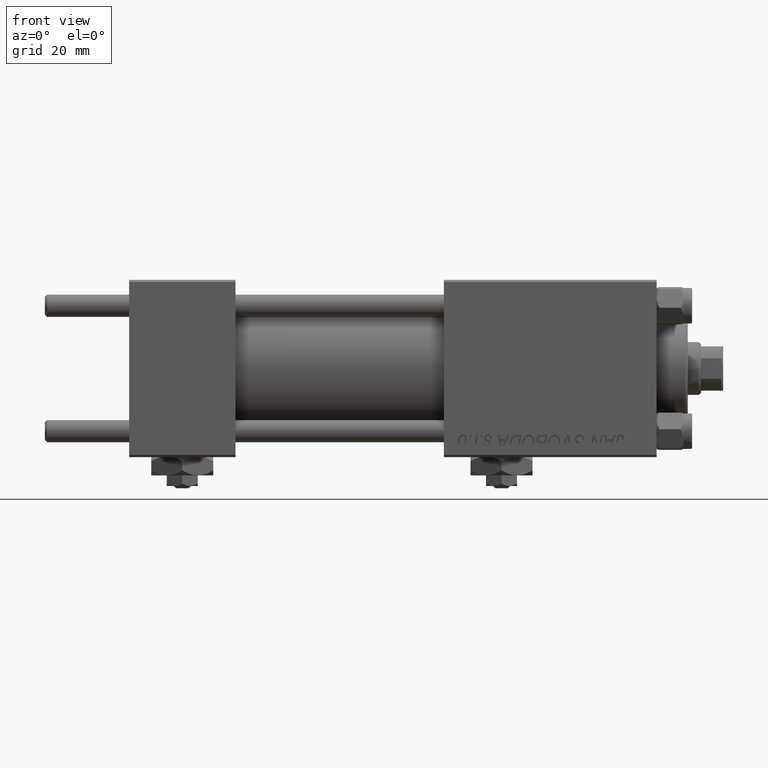
[diagram: clean part render]
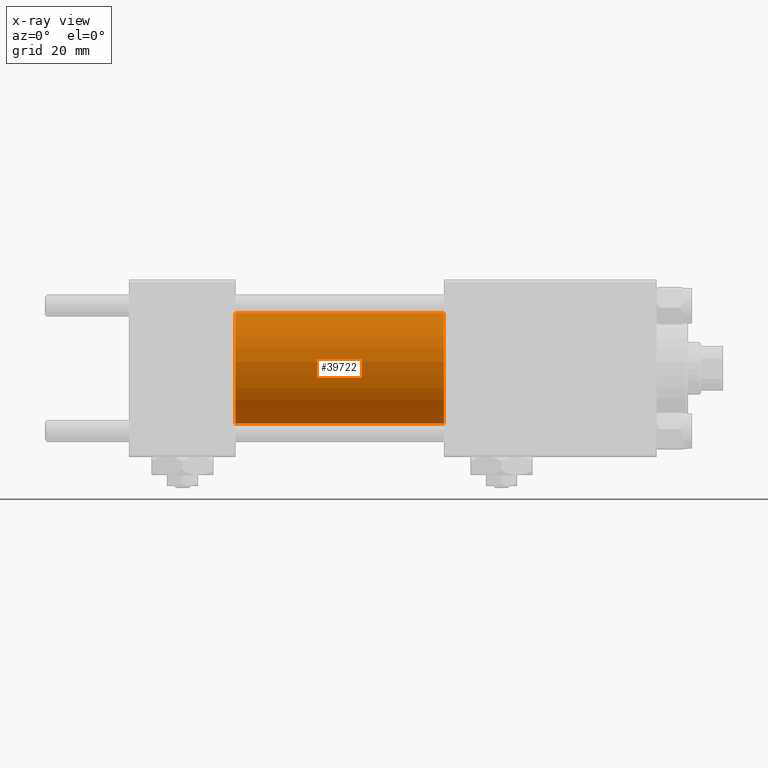
[diagram: x-ray — body ghosted, one internal face saturated and labeled with its STEP entity id]
A machine part, front view, then the same camera in x-ray: the body is ghosted and one INTERNAL B-rep face — a face not visible from any outside direction — is saturated and labeled: STEP entity #39722.
In plain terms, the highlighted cylindrical surface (partial cylindrical patch) has radius 12.5 mm, axis along (-1, -0, -0).
Its self-contained STEP definition (entity closure, byte-faithful):
#218 = DIRECTION ( 'NONE',  ( 1.000000000000000000, 0.000000000000000000, 0.000000000000000000 ) ) ;
#732 = FACE_OUTER_BOUND ( 'NONE', #31764, .T. ) ;
#1358 = VECTOR ( 'NONE', #47147, 1000.000000000000000 ) ;
#2269 = CIRCLE ( 'NONE', #22412, 12.49999999999999645 ) ;
#2329 = ORIENTED_EDGE ( 'NONE', *, *, #46468, .F. ) ;
#4921 = CARTESIAN_POINT ( 'NONE',  ( 71.00000000000001421, 1.530808498934191127E-15, -12.49999999999999645 ) ) ;
#9123 = CARTESIAN_POINT ( 'NONE',  ( 71.00000000000001421, 0.000000000000000000, 0.000000000000000000 ) ) ;
#9685 = VERTEX_POINT ( 'NONE', #26418 ) ;
#10628 = LINE ( 'NONE', #31116, #1358 ) ;
#11803 = AXIS2_PLACEMENT_3D ( 'NONE', #9123, #33553, #25669 ) ;
#12690 = VERTEX_POINT ( 'NONE', #4921 ) ;
#17538 = CYLINDRICAL_SURFACE ( 'NONE', #11803, 12.49999999999999645 ) ;
#18720 = LINE ( 'NONE', #27101, #45819 ) ;
#20135 = ORIENTED_EDGE ( 'NONE', *, *, #45807, .T. ) ;
#21497 = EDGE_CURVE ( 'NONE', #9685, #33638, #18720, .T. ) ;
#22412 = AXIS2_PLACEMENT_3D ( 'NONE', #34398, #218, #23865 ) ;
#23865 = DIRECTION ( 'NONE',  ( 0.000000000000000000, 0.000000000000000000, -1.000000000000000000 ) ) ;
#25669 = DIRECTION ( 'NONE',  ( 0.000000000000000000, 0.000000000000000000, 1.000000000000000000 ) ) ;
#26418 = CARTESIAN_POINT ( 'NONE',  ( 71.00000000000001421, 0.000000000000000000, 12.49999999999999645 ) ) ;
#26996 = EDGE_CURVE ( 'NONE', #9685, #12690, #2269, .T. ) ;
#27101 = CARTESIAN_POINT ( 'NONE',  ( 71.00000000000001421, 0.000000000000000000, 12.49999999999999645 ) ) ;
#27364 = AXIS2_PLACEMENT_3D ( 'NONE', #46949, #51148, #42742 ) ;
#28676 = ORIENTED_EDGE ( 'NONE', *, *, #21497, .F. ) ;
#31116 = CARTESIAN_POINT ( 'NONE',  ( 71.00000000000001421, 1.530808498934191127E-15, -12.49999999999999645 ) ) ;
#31764 = EDGE_LOOP ( 'NONE', ( #38788, #20135, #2329, #28676 ) ) ;
#33553 = DIRECTION ( 'NONE',  ( -1.000000000000000000, -0.000000000000000000, -0.000000000000000000 ) ) ;
#33638 = VERTEX_POINT ( 'NONE', #50436 ) ;
#34398 = CARTESIAN_POINT ( 'NONE',  ( 71.00000000000001421, 0.000000000000000000, 0.000000000000000000 ) ) ;
#37142 = CARTESIAN_POINT ( 'NONE',  ( 24.00000000000000000, 1.530808498934191127E-15, -12.49999999999999645 ) ) ;
#38788 = ORIENTED_EDGE ( 'NONE', *, *, #26996, .T. ) ;
#39722 = ADVANCED_FACE ( 'NONE', ( #732 ), #17538, .F. ) ;
#42108 = DIRECTION ( 'NONE',  ( -1.000000000000000000, -0.000000000000000000, -0.000000000000000000 ) ) ;
#42742 = DIRECTION ( 'NONE',  ( 0.000000000000000000, 0.000000000000000000, -1.000000000000000000 ) ) ;
#45807 = EDGE_CURVE ( 'NONE', #12690, #48905, #10628, .T. ) ;
#45819 = VECTOR ( 'NONE', #42108, 1000.000000000000000 ) ;
#46468 = EDGE_CURVE ( 'NONE', #33638, #48905, #50037, .T. ) ;
#46949 = CARTESIAN_POINT ( 'NONE',  ( 24.00000000000000000, 0.000000000000000000, 0.000000000000000000 ) ) ;
#47147 = DIRECTION ( 'NONE',  ( -1.000000000000000000, -0.000000000000000000, -0.000000000000000000 ) ) ;
#48905 = VERTEX_POINT ( 'NONE', #37142 ) ;
#50037 = CIRCLE ( 'NONE', #27364, 12.49999999999999645 ) ;
#50436 = CARTESIAN_POINT ( 'NONE',  ( 24.00000000000000000, 0.000000000000000000, 12.49999999999999645 ) ) ;
#51148 = DIRECTION ( 'NONE',  ( 1.000000000000000000, 0.000000000000000000, 0.000000000000000000 ) ) ;